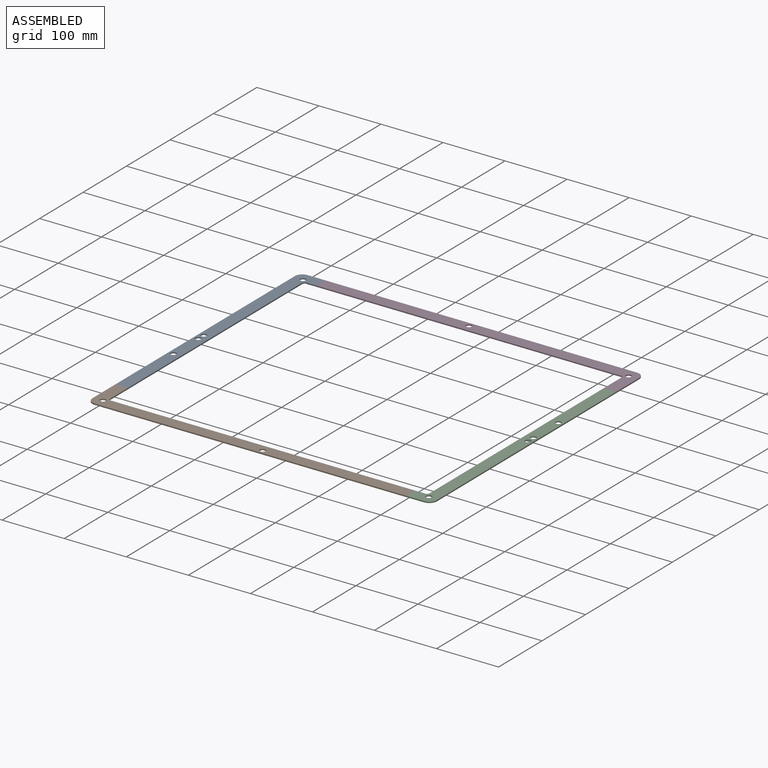
[diagram: assembled view]
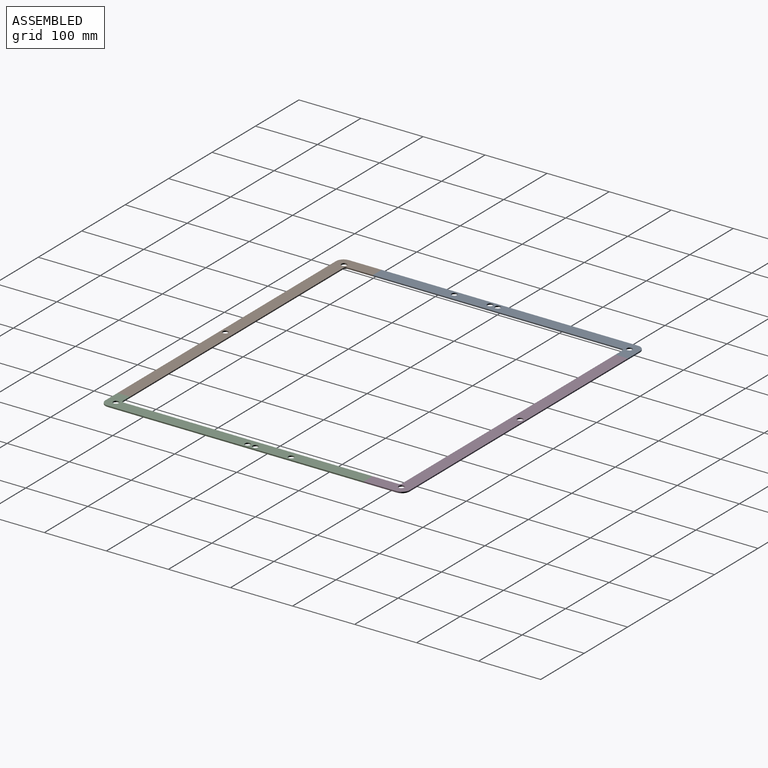
[diagram: assembled view, second angle]
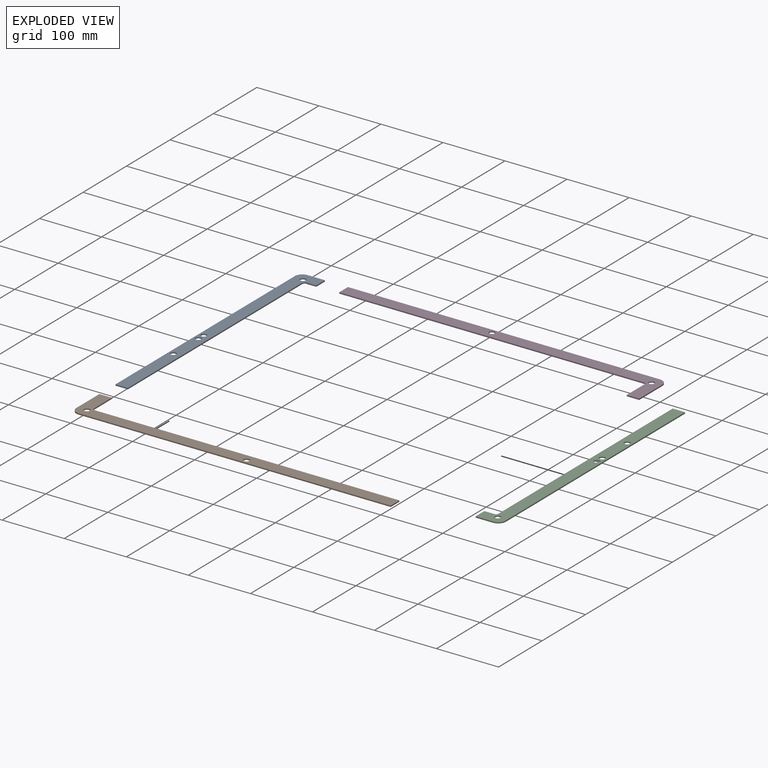
[diagram: exploded view]
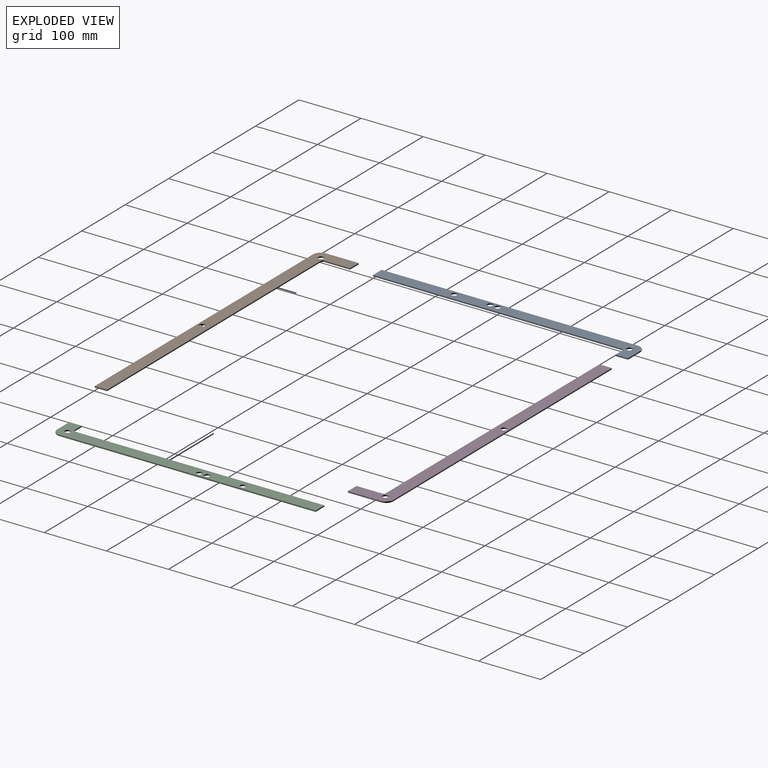
[diagram: exploded view, second angle]
ASSEMBLY  parts=4 mates=3
PART A: 14 faces, bbox 40x425x2 mm
  f0: plane 401x2mm, normal (1,0,0), area 802mm2, adj f1,f7,f8,f9
  f1: cylinder r=4mm len=4mm, axis (0,0,-1), area 12.6mm2, adj f0,f2,f8,f9
  f2: plane 16x2mm, normal (0,-1,0), area 32mm2, adj f1,f3,f8,f9
  f3: plane 20x2mm, normal (1,0,0), area 40mm2, adj f2,f4,f8,f9
  f4: plane 28x2mm, normal (0,1,0), area 56mm2, adj f3,f5,f8,f9
  f5: cylinder r=12mm len=12mm, axis (0,0,-1), area 37.7mm2, adj f4,f6,f8,f9
  f6: plane 413x2mm, normal (-1,0,0), area 826mm2, adj f5,f7,f8,f9
  f7: plane 20x2mm, normal (0,-1,0), area 40mm2, adj f0,f6,f8,f9
  f8: plane 425x40mm, normal (0,0,1), area 8618.1mm2, adj f0,f1,f2,f3,f4,f5,f6,f7
  f9: plane 425x40mm, normal (0,0,-1), area 8618.1mm2, adj f0,f1,f2,f3,f4,f5,f6,f7
  f10: cylinder r=4.5mm len=9mm, axis (0,0,-1), area 56.5mm2, adj f8,f9
  f11: cylinder r=4.5mm len=9mm, axis (0,0,-1), area 56.5mm2, adj f8,f9
  f12: cylinder r=4.5mm len=9mm, axis (0,0,-1), area 56.5mm2, adj f8,f9
  f13: cylinder r=4.5mm len=9mm, axis (0,0,-1), area 56.5mm2, adj f8,f9
PART B: 12 faces, bbox 515x65x2 mm
  f0: plane 20x2mm, normal (0,1,0), area 40mm2, adj f1,f7,f8,f9
  f1: plane 53x2mm, normal (-1,0,0), area 106mm2, adj f0,f2,f8,f9
  f2: cylinder r=12mm len=12mm, axis (0,0,-1), area 37.7mm2, adj f1,f3,f8,f9
  f3: plane 503x2mm, normal (0,-1,0), area 1006mm2, adj f2,f4,f8,f9
  f4: plane 20x2mm, normal (1,0,0), area 40mm2, adj f3,f5,f8,f9
  f5: plane 491x2mm, normal (0,1,0), area 982mm2, adj f4,f6,f8,f9
  f6: cylinder r=4mm len=4mm, axis (0,0,-1), area 12.6mm2, adj f5,f7,f8,f9
  f7: plane 41x2mm, normal (1,0,0), area 82mm2, adj f0,f6,f8,f9
  f8: plane 515x65mm, normal (0,0,1), area 11045.3mm2, adj f0,f1,f2,f3,f4,f5,f6,f7
  f9: plane 515x65mm, normal (0,0,-1), area 11045.3mm2, adj f0,f1,f2,f3,f4,f5,f6,f7
  f10: cylinder r=4.5mm len=9mm, axis (0,0,-1), area 56.5mm2, adj f8,f9
  f11: cylinder r=4.5mm len=9mm, axis (0,0,-1), area 56.5mm2, adj f8,f9
PART C: same geometry as A
PART D: same geometry as B
PLACE A t=(-4.7,535.19,-1)mm
PLACE B t=(-4.7,535.19,-1)mm
PLACE C rot(axis=(0,0,1),180deg) t=(550.3,45.19,-1)mm
PLACE D rot(axis=(0,0,1),180deg) t=(550.3,45.19,-1)mm
MATE fastened B.f0 <-> A.f7  axis (0,1,0) through (5.3,110.19,0)mm
MATE fastened C.f3 <-> B.f4  axis (-1,0,0) through (510.3,55.19,0)mm
MATE fastened A.f3 <-> D.f4  axis (1,0,0) through (35.3,525.19,0)mm
